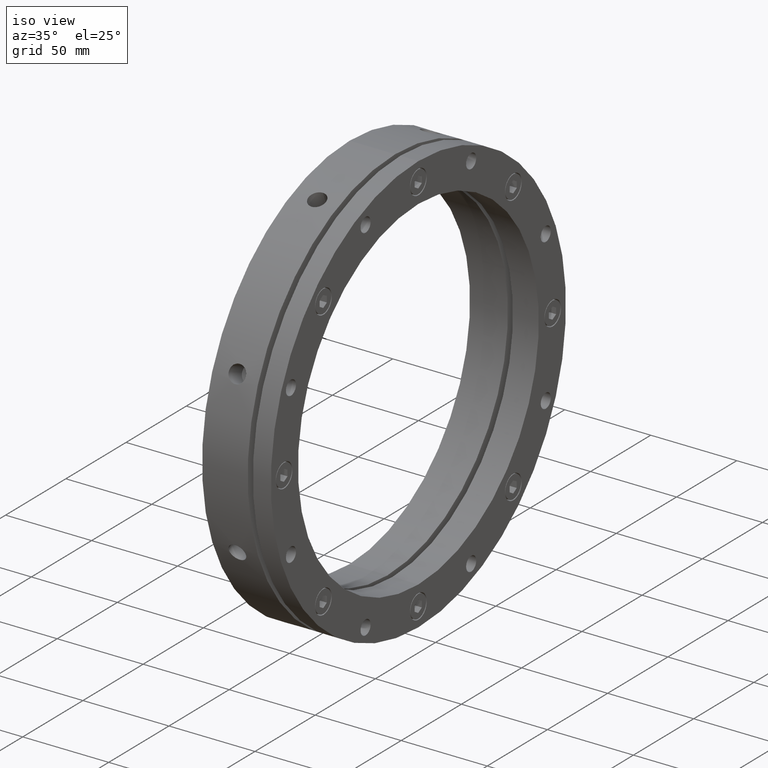
[diagram: clean part render]
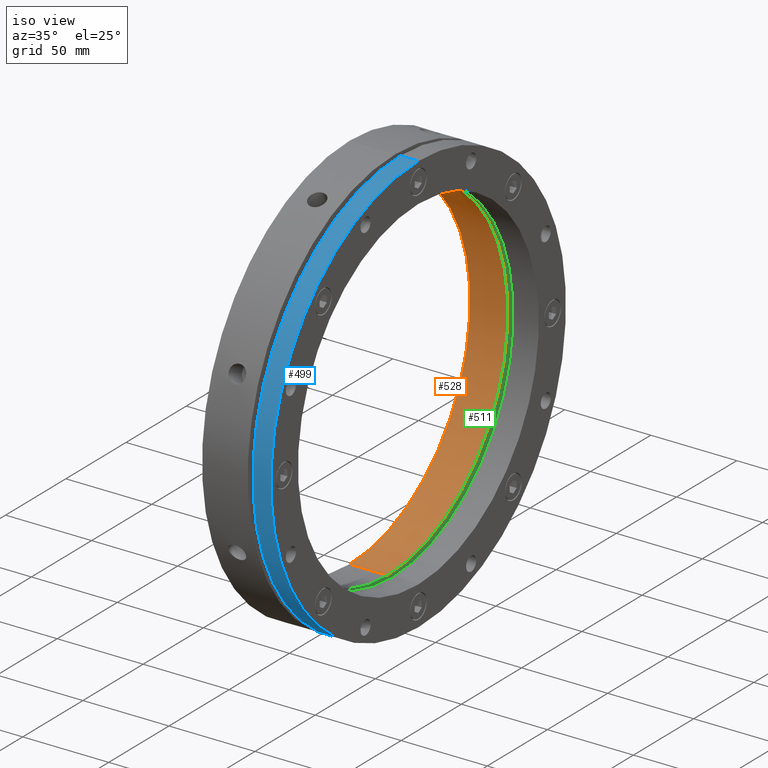
[diagram: same view with three faces highlighted in distinct colors, each labeled with its STEP entity id]
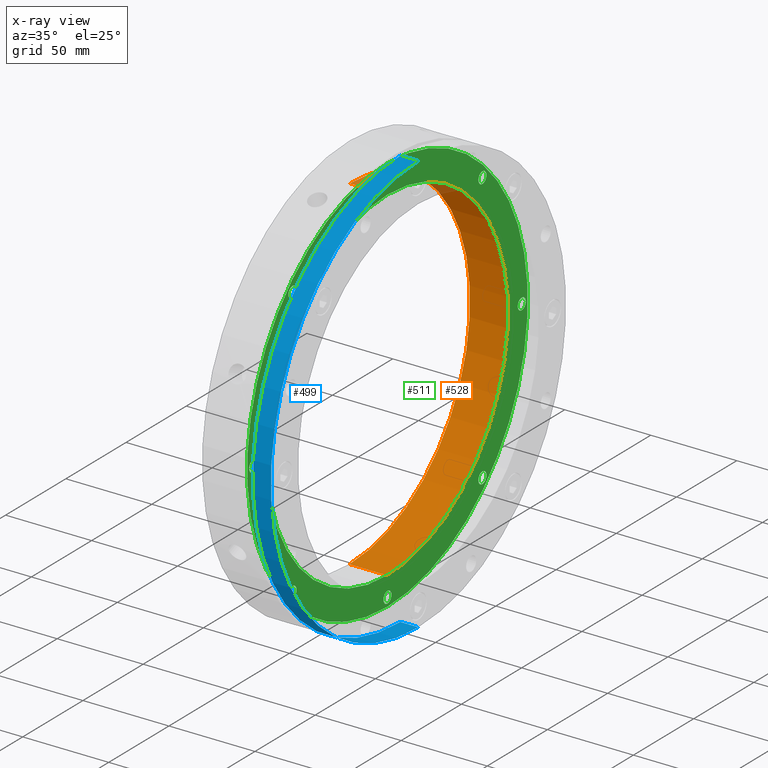
[diagram: x-ray of the same camera — body ghosted, the three highlighted faces saturated]
A machine part, iso view with three faces highlighted in distinct colors.
The next image is the same camera in x-ray (body ghosted, the three faces saturated) — at least one of them is partly hidden behind the body in this view.
Their STEP definitions:

[orange] entity #528 — the highlighted cylindrical surface (partial cylindrical patch) has radius 100 mm, axis along (1, 0, 0).
#193 = LINE ( 'NONE', #5312, #194 ) ;
#194 = VECTOR ( 'NONE', #5310, 1000.000000000000000 ) ;
#213 = LINE ( 'NONE', #5317, #222 ) ;
#222 = VECTOR ( 'NONE', #5313, 1000.000000000000000 ) ;
#415 = CIRCLE ( 'NONE', #4814, 100.0000000000000000 ) ;
#432 = CIRCLE ( 'NONE', #4827, 100.0000000000000000 ) ;
#528 = ADVANCED_FACE ( 'NONE', ( #4630 ), #4644, .F. ) ;
#680 = EDGE_CURVE ( 'NONE', #2823, #2867, #432, .T. ) ;
#703 = EDGE_CURVE ( 'NONE', #2841, #2928, #415, .T. ) ;
#1641 = ORIENTED_EDGE ( 'NONE', *, *, #680, .F. ) ;
#1645 = ORIENTED_EDGE ( 'NONE', *, *, #703, .F. ) ;
#1660 = ORIENTED_EDGE ( 'NONE', *, *, #3034, .F. ) ;
#1682 = ORIENTED_EDGE ( 'NONE', *, *, #3036, .T. ) ;
#2527 = DIRECTION ( 'NONE',  ( 0.0000000000000000000, 0.0000000000000000000, -1.000000000000000000 ) ) ;
#2529 = DIRECTION ( 'NONE',  ( 1.000000000000000000, 0.0000000000000000000, 0.0000000000000000000 ) ) ;
#2531 = CARTESIAN_POINT ( 'NONE',  ( 19.99999999999997200, 0.0000000000000000000, 0.0000000000000000000 ) ) ;
#2779 = EDGE_LOOP ( 'NONE', ( #1660, #1641, #1682, #1645 ) ) ;
#2823 = VERTEX_POINT ( 'NONE', #4227 ) ;
#2841 = VERTEX_POINT ( 'NONE', #4236 ) ;
#2867 = VERTEX_POINT ( 'NONE', #4260 ) ;
#2928 = VERTEX_POINT ( 'NONE', #4352 ) ;
#3034 = EDGE_CURVE ( 'NONE', #2867, #2841, #193, .T. ) ;
#3036 = EDGE_CURVE ( 'NONE', #2823, #2928, #213, .T. ) ;
#3471 = CARTESIAN_POINT ( 'NONE',  ( -3.122502256758252800E-014, 0.0000000000000000000, 0.0000000000000000000 ) ) ;
#3472 = DIRECTION ( 'NONE',  ( 1.000000000000000000, 0.0000000000000000000, 0.0000000000000000000 ) ) ;
#3473 = DIRECTION ( 'NONE',  ( 0.0000000000000000000, 0.0000000000000000000, -1.000000000000000000 ) ) ;
#3574 = CARTESIAN_POINT ( 'NONE',  ( 21.99999999999996400, 0.0000000000000000000, 0.0000000000000000000 ) ) ;
#3575 = DIRECTION ( 'NONE',  ( -1.000000000000000000, -0.0000000000000000000, -0.0000000000000000000 ) ) ;
#3576 = DIRECTION ( 'NONE',  ( 0.0000000000000000000, 0.0000000000000000000, -1.000000000000000000 ) ) ;
#4227 = CARTESIAN_POINT ( 'NONE',  ( -3.122502256758252800E-014, 0.0000000000000000000, -100.0000000000000000 ) ) ;
#4236 = CARTESIAN_POINT ( 'NONE',  ( 21.99999999999996400, 1.224646799147353200E-014, 100.0000000000000000 ) ) ;
#4260 = CARTESIAN_POINT ( 'NONE',  ( -3.122502256758252800E-014, 1.224646799147353200E-014, 100.0000000000000000 ) ) ;
#4352 = CARTESIAN_POINT ( 'NONE',  ( 21.99999999999996400, 0.0000000000000000000, -100.0000000000000000 ) ) ;
#4630 = FACE_OUTER_BOUND ( 'NONE', #2779, .T. ) ;
#4644 = CYLINDRICAL_SURFACE ( 'NONE', #5015, 100.0000000000000000 ) ;
#4814 = AXIS2_PLACEMENT_3D ( 'NONE', #3574, #3575, #3576 ) ;
#4827 = AXIS2_PLACEMENT_3D ( 'NONE', #3471, #3472, #3473 ) ;
#5015 = AXIS2_PLACEMENT_3D ( 'NONE', #2531, #2529, #2527 ) ;
#5310 = DIRECTION ( 'NONE',  ( 1.000000000000000000, 0.0000000000000000000, 0.0000000000000000000 ) ) ;
#5312 = CARTESIAN_POINT ( 'NONE',  ( 19.99999999999997200, 1.224646799147353200E-014, 100.0000000000000000 ) ) ;
#5313 = DIRECTION ( 'NONE',  ( 1.000000000000000000, 0.0000000000000000000, 0.0000000000000000000 ) ) ;
#5317 = CARTESIAN_POINT ( 'NONE',  ( 19.99999999999997200, 0.0000000000000000000, -100.0000000000000000 ) ) ;

[blue] entity #499 — the highlighted cylindrical surface (partial cylindrical patch) has radius 122.5 mm, axis along (1, 0, 0).
#202 = LINE ( 'NONE', #5357, #241 ) ;
#203 = VECTOR ( 'NONE', #5358, 1000.000000000000000 ) ;
#212 = LINE ( 'NONE', #5364, #203 ) ;
#236 = CIRCLE ( 'NONE', #4825, 122.5000000000000000 ) ;
#241 = VECTOR ( 'NONE', #5353, 1000.000000000000000 ) ;
#345 = CIRCLE ( 'NONE', #5996, 122.5000000000000000 ) ;
#499 = ADVANCED_FACE ( 'NONE', ( #828 ), #4549, .T. ) ;
#669 = EDGE_CURVE ( 'NONE', #2812, #2825, #236, .T. ) ;
#755 = EDGE_CURVE ( 'NONE', #2873, #2930, #345, .T. ) ;
#828 = FACE_OUTER_BOUND ( 'NONE', #1548, .T. ) ;
#1094 = AXIS2_PLACEMENT_3D ( 'NONE', #2441, #2439, #2433 ) ;
#1497 = ORIENTED_EDGE ( 'NONE', *, *, #669, .T. ) ;
#1502 = ORIENTED_EDGE ( 'NONE', *, *, #755, .T. ) ;
#1509 = ORIENTED_EDGE ( 'NONE', *, *, #3054, .F. ) ;
#1534 = ORIENTED_EDGE ( 'NONE', *, *, #3052, .T. ) ;
#1548 = EDGE_LOOP ( 'NONE', ( #1509, #1497, #1534, #1502 ) ) ;
#2433 = DIRECTION ( 'NONE',  ( 0.0000000000000000000, 0.0000000000000000000, -1.000000000000000000 ) ) ;
#2439 = DIRECTION ( 'NONE',  ( 1.000000000000000000, 0.0000000000000000000, 0.0000000000000000000 ) ) ;
#2441 = CARTESIAN_POINT ( 'NONE',  ( 19.99999999999996800, 0.0000000000000000000, 0.0000000000000000000 ) ) ;
#2812 = VERTEX_POINT ( 'NONE', #4219 ) ;
#2825 = VERTEX_POINT ( 'NONE', #4228 ) ;
#2873 = VERTEX_POINT ( 'NONE', #4266 ) ;
#2930 = VERTEX_POINT ( 'NONE', #4355 ) ;
#3052 = EDGE_CURVE ( 'NONE', #2825, #2873, #202, .T. ) ;
#3054 = EDGE_CURVE ( 'NONE', #2812, #2930, #212, .T. ) ;
#3368 = CARTESIAN_POINT ( 'NONE',  ( 29.49999999999997200, 0.0000000000000000000, 0.0000000000000000000 ) ) ;
#3369 = DIRECTION ( 'NONE',  ( 1.000000000000000000, 0.0000000000000000000, 0.0000000000000000000 ) ) ;
#3370 = DIRECTION ( 'NONE',  ( 0.0000000000000000000, 0.0000000000000000000, -1.000000000000000000 ) ) ;
#3761 = CARTESIAN_POINT ( 'NONE',  ( 39.99999999999997200, 0.0000000000000000000, 0.0000000000000000000 ) ) ;
#3762 = DIRECTION ( 'NONE',  ( -1.000000000000000000, -0.0000000000000000000, -0.0000000000000000000 ) ) ;
#3763 = DIRECTION ( 'NONE',  ( 0.0000000000000000000, 0.0000000000000000000, -1.000000000000000000 ) ) ;
#4219 = CARTESIAN_POINT ( 'NONE',  ( 29.49999999999997200, 1.500192328955507800E-014, 122.5000000000000000 ) ) ;
#4228 = CARTESIAN_POINT ( 'NONE',  ( 29.49999999999997200, 0.0000000000000000000, -122.5000000000000000 ) ) ;
#4266 = CARTESIAN_POINT ( 'NONE',  ( 39.99999999999997200, 0.0000000000000000000, -122.5000000000000000 ) ) ;
#4355 = CARTESIAN_POINT ( 'NONE',  ( 39.99999999999997200, 1.500192328955507800E-014, 122.5000000000000000 ) ) ;
#4549 = CYLINDRICAL_SURFACE ( 'NONE', #1094, 122.5000000000000000 ) ;
#4825 = AXIS2_PLACEMENT_3D ( 'NONE', #3368, #3369, #3370 ) ;
#5353 = DIRECTION ( 'NONE',  ( 1.000000000000000000, 0.0000000000000000000, 0.0000000000000000000 ) ) ;
#5357 = CARTESIAN_POINT ( 'NONE',  ( 19.99999999999996800, 0.0000000000000000000, -122.5000000000000000 ) ) ;
#5358 = DIRECTION ( 'NONE',  ( 1.000000000000000000, 0.0000000000000000000, 0.0000000000000000000 ) ) ;
#5364 = CARTESIAN_POINT ( 'NONE',  ( 19.99999999999996800, 1.500192328955507800E-014, 122.5000000000000000 ) ) ;
#5996 = AXIS2_PLACEMENT_3D ( 'NONE', #3761, #3762, #3763 ) ;

[green] entity #511 — the highlighted planar face has unit normal (-1, 0, 0).
#22 = CIRCLE ( 'NONE', #1589, 3.323499999999993000 ) ;
#40 = CIRCLE ( 'NONE', #1587, 3.323499999999993000 ) ;
#73 = CIRCLE ( 'NONE', #1593, 3.323500000000007200 ) ;
#108 = CIRCLE ( 'NONE', #1591, 3.323500000000000100 ) ;
#179 = CIRCLE ( 'NONE', #1618, 100.0000000000000000 ) ;
#226 = CIRCLE ( 'NONE', #1617, 3.323499999999993000 ) ;
#242 = CIRCLE ( 'NONE', #4824, 3.323500000000000100 ) ;
#263 = CIRCLE ( 'NONE', #4818, 3.323500000000000100 ) ;
#351 = CIRCLE ( 'NONE', #4839, 116.5000000000000000 ) ;
#415 = CIRCLE ( 'NONE', #4814, 100.0000000000000000 ) ;
#421 = CIRCLE ( 'NONE', #4841, 3.323499999999993000 ) ;
#428 = CIRCLE ( 'NONE', #4830, 3.323500000000007200 ) ;
#431 = CIRCLE ( 'NONE', #4823, 3.323499999999993000 ) ;
#433 = CIRCLE ( 'NONE', #4822, 3.323500000000007200 ) ;
#437 = CIRCLE ( 'NONE', #4826, 3.323500000000007200 ) ;
#438 = CIRCLE ( 'NONE', #4794, 3.323499999999993000 ) ;
#511 = ADVANCED_FACE ( 'NONE', ( #4733, #4569, #4595, #4562, #4558, #4565, #4570, #4608, #4574, #4571 ), #2478, .F. ) ;
#664 = EDGE_CURVE ( 'NONE', #2869, #2879, #263, .T. ) ;
#668 = EDGE_CURVE ( 'NONE', #2905, #2881, #242, .T. ) ;
#670 = EDGE_CURVE ( 'NONE', #2849, #2810, #437, .T. ) ;
#672 = EDGE_CURVE ( 'NONE', #2859, #2851, #438, .T. ) ;
#677 = EDGE_CURVE ( 'NONE', #2957, #2950, #433, .T. ) ;
#679 = EDGE_CURVE ( 'NONE', #2889, #2891, #431, .T. ) ;
#683 = EDGE_CURVE ( 'NONE', #2845, #2931, #428, .T. ) ;
#692 = EDGE_CURVE ( 'NONE', #2912, #2888, #351, .T. ) ;
#695 = EDGE_CURVE ( 'NONE', #2883, #2887, #421, .T. ) ;
#703 = EDGE_CURVE ( 'NONE', #2841, #2928, #415, .T. ) ;
#1209 = CIRCLE ( 'NONE', #4474, 3.323500000000007200 ) ;
#1280 = CIRCLE ( 'NONE', #4465, 3.323500000000000100 ) ;
#1296 = CIRCLE ( 'NONE', #4464, 3.323500000000007200 ) ;
#1299 = CIRCLE ( 'NONE', #4477, 116.5000000000000000 ) ;
#1587 = AXIS2_PLACEMENT_3D ( 'NONE', #5474, #5475, #5476 ) ;
#1589 = AXIS2_PLACEMENT_3D ( 'NONE', #5464, #5465, #5466 ) ;
#1591 = AXIS2_PLACEMENT_3D ( 'NONE', #5454, #5455, #5456 ) ;
#1593 = AXIS2_PLACEMENT_3D ( 'NONE', #5444, #5445, #5446 ) ;
#1617 = AXIS2_PLACEMENT_3D ( 'NONE', #5324, #5325, #5326 ) ;
#1618 = AXIS2_PLACEMENT_3D ( 'NONE', #5319, #5320, #5321 ) ;
#1699 = ORIENTED_EDGE ( 'NONE', *, *, #3035, .T. ) ;
#1703 = ORIENTED_EDGE ( 'NONE', *, *, #672, .T. ) ;
#1707 = ORIENTED_EDGE ( 'NONE', *, *, #670, .T. ) ;
#1712 = ORIENTED_EDGE ( 'NONE', *, *, #695, .T. ) ;
#1714 = ORIENTED_EDGE ( 'NONE', *, *, #3097, .T. ) ;
#1716 = ORIENTED_EDGE ( 'NONE', *, *, #679, .T. ) ;
#1717 = EDGE_LOOP ( 'NONE', ( #1796, #1800 ) ) ;
#1720 = ORIENTED_EDGE ( 'NONE', *, *, #683, .T. ) ;
#1721 = ORIENTED_EDGE ( 'NONE', *, *, #3089, .T. ) ;
#1722 = ORIENTED_EDGE ( 'NONE', *, *, #3037, .T. ) ;
#1754 = ORIENTED_EDGE ( 'NONE', *, *, #703, .T. ) ;
#1757 = EDGE_LOOP ( 'NONE', ( #1712, #1792 ) ) ;
#1772 = ORIENTED_EDGE ( 'NONE', *, *, #3085, .T. ) ;
#1789 = EDGE_LOOP ( 'NONE', ( #1699, #1754 ) ) ;
#1792 = ORIENTED_EDGE ( 'NONE', *, *, #3093, .T. ) ;
#1796 = ORIENTED_EDGE ( 'NONE', *, *, #668, .T. ) ;
#1797 = ORIENTED_EDGE ( 'NONE', *, *, #677, .T. ) ;
#1800 = ORIENTED_EDGE ( 'NONE', *, *, #3223, .T. ) ;
#1801 = ORIENTED_EDGE ( 'NONE', *, *, #692, .F. ) ;
#1823 = ORIENTED_EDGE ( 'NONE', *, *, #3225, .T. ) ;
#1839 = ORIENTED_EDGE ( 'NONE', *, *, #664, .T. ) ;
#1844 = ORIENTED_EDGE ( 'NONE', *, *, #3192, .F. ) ;
#1858 = EDGE_LOOP ( 'NONE', ( #1801, #1844 ) ) ;
#1860 = EDGE_LOOP ( 'NONE', ( #1797, #1823 ) ) ;
#1872 = ORIENTED_EDGE ( 'NONE', *, *, #3201, .T. ) ;
#1897 = EDGE_LOOP ( 'NONE', ( #1716, #1714 ) ) ;
#1908 = EDGE_LOOP ( 'NONE', ( #1839, #1721 ) ) ;
#1909 = EDGE_LOOP ( 'NONE', ( #1703, #1722 ) ) ;
#1912 = EDGE_LOOP ( 'NONE', ( #1720, #1872 ) ) ;
#1915 = EDGE_LOOP ( 'NONE', ( #1707, #1772 ) ) ;
#2475 = DIRECTION ( 'NONE',  ( -1.000000000000000000, 0.0000000000000000000, 0.0000000000000000000 ) ) ;
#2476 = CARTESIAN_POINT ( 'NONE',  ( 21.99999999999996400, 58.25000000000000000, 0.0000000000000000000 ) ) ;
#2478 = PLANE ( 'NONE',  #5032 ) ;
#2481 = DIRECTION ( 'NONE',  ( 0.0000000000000000000, 0.0000000000000000000, 1.000000000000000000 ) ) ;
#2810 = VERTEX_POINT ( 'NONE', #4217 ) ;
#2841 = VERTEX_POINT ( 'NONE', #4236 ) ;
#2845 = VERTEX_POINT ( 'NONE', #4239 ) ;
#2849 = VERTEX_POINT ( 'NONE', #4242 ) ;
#2851 = VERTEX_POINT ( 'NONE', #4244 ) ;
#2859 = VERTEX_POINT ( 'NONE', #4252 ) ;
#2869 = VERTEX_POINT ( 'NONE', #4262 ) ;
#2879 = VERTEX_POINT ( 'NONE', #4272 ) ;
#2881 = VERTEX_POINT ( 'NONE', #4274 ) ;
#2883 = VERTEX_POINT ( 'NONE', #4276 ) ;
#2887 = VERTEX_POINT ( 'NONE', #4282 ) ;
#2888 = VERTEX_POINT ( 'NONE', #4284 ) ;
#2889 = VERTEX_POINT ( 'NONE', #4285 ) ;
#2891 = VERTEX_POINT ( 'NONE', #4289 ) ;
#2905 = VERTEX_POINT ( 'NONE', #4311 ) ;
#2912 = VERTEX_POINT ( 'NONE', #4324 ) ;
#2928 = VERTEX_POINT ( 'NONE', #4352 ) ;
#2931 = VERTEX_POINT ( 'NONE', #4357 ) ;
#2950 = VERTEX_POINT ( 'NONE', #5050 ) ;
#2957 = VERTEX_POINT ( 'NONE', #5057 ) ;
#3035 = EDGE_CURVE ( 'NONE', #2928, #2841, #179, .T. ) ;
#3037 = EDGE_CURVE ( 'NONE', #2851, #2859, #226, .T. ) ;
#3085 = EDGE_CURVE ( 'NONE', #2810, #2849, #73, .T. ) ;
#3089 = EDGE_CURVE ( 'NONE', #2879, #2869, #108, .T. ) ;
#3093 = EDGE_CURVE ( 'NONE', #2887, #2883, #22, .T. ) ;
#3097 = EDGE_CURVE ( 'NONE', #2891, #2889, #40, .T. ) ;
#3192 = EDGE_CURVE ( 'NONE', #2888, #2912, #1299, .T. ) ;
#3201 = EDGE_CURVE ( 'NONE', #2931, #2845, #1209, .T. ) ;
#3223 = EDGE_CURVE ( 'NONE', #2881, #2905, #1280, .T. ) ;
#3225 = EDGE_CURVE ( 'NONE', #2950, #2957, #1296, .T. ) ;
#3355 = CARTESIAN_POINT ( 'NONE',  ( 21.99999999999996400, -111.5000000000000000, 0.0000000000000000000 ) ) ;
#3356 = DIRECTION ( 'NONE',  ( -1.000000000000000000, 0.0000000000000000000, 0.0000000000000000000 ) ) ;
#3357 = DIRECTION ( 'NONE',  ( 0.0000000000000000000, 0.0000000000000000000, 1.000000000000000000 ) ) ;
#3365 = CARTESIAN_POINT ( 'NONE',  ( 21.99999999999996400, 111.5000000000000000, -1.776356999999999900E-014 ) ) ;
#3366 = DIRECTION ( 'NONE',  ( -1.000000000000000000, 0.0000000000000000000, 0.0000000000000000000 ) ) ;
#3367 = DIRECTION ( 'NONE',  ( 0.0000000000000000000, 0.0000000000000000000, 1.000000000000000000 ) ) ;
#3372 = CARTESIAN_POINT ( 'NONE',  ( 21.99999999999996400, -78.84240610230004600, 78.84240610230006000 ) ) ;
#3373 = DIRECTION ( 'NONE',  ( -1.000000000000000000, 0.0000000000000000000, 0.0000000000000000000 ) ) ;
#3374 = DIRECTION ( 'NONE',  ( 0.0000000000000000000, 0.0000000000000000000, 1.000000000000000000 ) ) ;
#3412 = CARTESIAN_POINT ( 'NONE',  ( 21.99999999999996400, 0.0000000000000000000, 111.5000000000000000 ) ) ;
#3413 = DIRECTION ( 'NONE',  ( -1.000000000000000000, 0.0000000000000000000, 0.0000000000000000000 ) ) ;
#3414 = DIRECTION ( 'NONE',  ( 0.0000000000000000000, 0.0000000000000000000, 1.000000000000000000 ) ) ;
#3428 = CARTESIAN_POINT ( 'NONE',  ( 21.99999999999996400, 78.84240610230007500, 78.84240610230003200 ) ) ;
#3429 = DIRECTION ( 'NONE',  ( -1.000000000000000000, 0.0000000000000000000, 0.0000000000000000000 ) ) ;
#3430 = DIRECTION ( 'NONE',  ( 0.0000000000000000000, 0.0000000000000000000, 1.000000000000000000 ) ) ;
#3468 = CARTESIAN_POINT ( 'NONE',  ( 21.99999999999996400, -1.776356999999999900E-014, -111.5000000000000000 ) ) ;
#3469 = DIRECTION ( 'NONE',  ( -1.000000000000000000, 0.0000000000000000000, 0.0000000000000000000 ) ) ;
#3470 = DIRECTION ( 'NONE',  ( 0.0000000000000000000, 0.0000000000000000000, 1.000000000000000000 ) ) ;
#3480 = CARTESIAN_POINT ( 'NONE',  ( 21.99999999999996400, 78.84240610230003200, -78.84240610230006000 ) ) ;
#3481 = DIRECTION ( 'NONE',  ( -1.000000000000000000, 0.0000000000000000000, 0.0000000000000000000 ) ) ;
#3482 = DIRECTION ( 'NONE',  ( 0.0000000000000000000, 0.0000000000000000000, 1.000000000000000000 ) ) ;
#3507 = CARTESIAN_POINT ( 'NONE',  ( 21.99999999999995000, 0.0000000000000000000, 0.0000000000000000000 ) ) ;
#3508 = DIRECTION ( 'NONE',  ( -1.000000000000000000, 0.0000000000000000000, 0.0000000000000000000 ) ) ;
#3509 = DIRECTION ( 'NONE',  ( 0.0000000000000000000, 0.0000000000000000000, 1.000000000000000000 ) ) ;
#3549 = CARTESIAN_POINT ( 'NONE',  ( 21.99999999999996400, -78.84240610230006000, -78.84240610230004600 ) ) ;
#3550 = DIRECTION ( 'NONE',  ( -1.000000000000000000, 0.0000000000000000000, 0.0000000000000000000 ) ) ;
#3551 = DIRECTION ( 'NONE',  ( 0.0000000000000000000, 0.0000000000000000000, 1.000000000000000000 ) ) ;
#3574 = CARTESIAN_POINT ( 'NONE',  ( 21.99999999999996400, 0.0000000000000000000, 0.0000000000000000000 ) ) ;
#3575 = DIRECTION ( 'NONE',  ( -1.000000000000000000, -0.0000000000000000000, -0.0000000000000000000 ) ) ;
#3576 = DIRECTION ( 'NONE',  ( 0.0000000000000000000, 0.0000000000000000000, -1.000000000000000000 ) ) ;
#4217 = CARTESIAN_POINT ( 'NONE',  ( 21.99999999999996400, -78.84240610230004600, 75.51890610230005100 ) ) ;
#4236 = CARTESIAN_POINT ( 'NONE',  ( 21.99999999999996400, 1.224646799147353200E-014, 100.0000000000000000 ) ) ;
#4239 = CARTESIAN_POINT ( 'NONE',  ( 21.99999999999996400, 78.84240610230003200, -75.51890610230005100 ) ) ;
#4242 = CARTESIAN_POINT ( 'NONE',  ( 21.99999999999996400, -78.84240610230004600, 82.16590610230007000 ) ) ;
#4244 = CARTESIAN_POINT ( 'NONE',  ( 21.99999999999996400, 4.070113636966236800E-016, 108.1765000000000000 ) ) ;
#4252 = CARTESIAN_POINT ( 'NONE',  ( 21.99999999999996400, 0.0000000000000000000, 114.8235000000000000 ) ) ;
#4262 = CARTESIAN_POINT ( 'NONE',  ( 21.99999999999996400, -111.5000000000000000, 3.323500000000000100 ) ) ;
#4272 = CARTESIAN_POINT ( 'NONE',  ( 21.99999999999996400, -111.5000000000000000, -3.323500000000000100 ) ) ;
#4274 = CARTESIAN_POINT ( 'NONE',  ( 21.99999999999996400, 111.5000000000000000, -3.323500000000017900 ) ) ;
#4276 = CARTESIAN_POINT ( 'NONE',  ( 21.99999999999996400, -78.84240610230006000, -75.51890610230005100 ) ) ;
#4282 = CARTESIAN_POINT ( 'NONE',  ( 21.99999999999996400, -78.84240610230006000, -82.16590610230004200 ) ) ;
#4284 = CARTESIAN_POINT ( 'NONE',  ( 21.99999999999995000, 1.426713521006666700E-014, -116.5000000000000000 ) ) ;
#4285 = CARTESIAN_POINT ( 'NONE',  ( 21.99999999999996400, -1.776356999999999900E-014, -108.1765000000000000 ) ) ;
#4289 = CARTESIAN_POINT ( 'NONE',  ( 21.99999999999996400, -1.735655863630337500E-014, -114.8235000000000000 ) ) ;
#4311 = CARTESIAN_POINT ( 'NONE',  ( 21.99999999999996400, 111.5000000000000000, 3.323499999999982400 ) ) ;
#4324 = CARTESIAN_POINT ( 'NONE',  ( 21.99999999999995000, 0.0000000000000000000, 116.5000000000000000 ) ) ;
#4352 = CARTESIAN_POINT ( 'NONE',  ( 21.99999999999996400, 0.0000000000000000000, -100.0000000000000000 ) ) ;
#4357 = CARTESIAN_POINT ( 'NONE',  ( 21.99999999999996400, 78.84240610230003200, -82.16590610230007000 ) ) ;
#4464 = AXIS2_PLACEMENT_3D ( 'NONE', #5793, #5794, #5795 ) ;
#4465 = AXIS2_PLACEMENT_3D ( 'NONE', #5787, #5788, #5789 ) ;
#4474 = AXIS2_PLACEMENT_3D ( 'NONE', #5733, #5734, #5735 ) ;
#4477 = AXIS2_PLACEMENT_3D ( 'NONE', #5712, #5713, #5714 ) ;
#4558 = FACE_BOUND ( 'NONE', #1757, .T. ) ;
#4562 = FACE_BOUND ( 'NONE', #1908, .T. ) ;
#4565 = FACE_BOUND ( 'NONE', #1897, .T. ) ;
#4569 = FACE_BOUND ( 'NONE', #1909, .T. ) ;
#4570 = FACE_BOUND ( 'NONE', #1912, .T. ) ;
#4571 = FACE_OUTER_BOUND ( 'NONE', #1858, .T. ) ;
#4574 = FACE_BOUND ( 'NONE', #1860, .T. ) ;
#4595 = FACE_BOUND ( 'NONE', #1915, .T. ) ;
#4608 = FACE_BOUND ( 'NONE', #1717, .T. ) ;
#4733 = FACE_BOUND ( 'NONE', #1789, .T. ) ;
#4794 = AXIS2_PLACEMENT_3D ( 'NONE', #3412, #3413, #3414 ) ;
#4814 = AXIS2_PLACEMENT_3D ( 'NONE', #3574, #3575, #3576 ) ;
#4818 = AXIS2_PLACEMENT_3D ( 'NONE', #3355, #3356, #3357 ) ;
#4822 = AXIS2_PLACEMENT_3D ( 'NONE', #3428, #3429, #3430 ) ;
#4823 = AXIS2_PLACEMENT_3D ( 'NONE', #3468, #3469, #3470 ) ;
#4824 = AXIS2_PLACEMENT_3D ( 'NONE', #3365, #3366, #3367 ) ;
#4826 = AXIS2_PLACEMENT_3D ( 'NONE', #3372, #3373, #3374 ) ;
#4830 = AXIS2_PLACEMENT_3D ( 'NONE', #3480, #3481, #3482 ) ;
#4839 = AXIS2_PLACEMENT_3D ( 'NONE', #3507, #3508, #3509 ) ;
#4841 = AXIS2_PLACEMENT_3D ( 'NONE', #3549, #3550, #3551 ) ;
#5032 = AXIS2_PLACEMENT_3D ( 'NONE', #2476, #2475, #2481 ) ;
#5050 = CARTESIAN_POINT ( 'NONE',  ( 21.99999999999996400, 78.84240610230007500, 75.51890610230002200 ) ) ;
#5057 = CARTESIAN_POINT ( 'NONE',  ( 21.99999999999996400, 78.84240610230007500, 82.16590610230004200 ) ) ;
#5319 = CARTESIAN_POINT ( 'NONE',  ( 21.99999999999996400, 0.0000000000000000000, 0.0000000000000000000 ) ) ;
#5320 = DIRECTION ( 'NONE',  ( -1.000000000000000000, -0.0000000000000000000, -0.0000000000000000000 ) ) ;
#5321 = DIRECTION ( 'NONE',  ( 0.0000000000000000000, 0.0000000000000000000, -1.000000000000000000 ) ) ;
#5324 = CARTESIAN_POINT ( 'NONE',  ( 21.99999999999996400, 0.0000000000000000000, 111.5000000000000000 ) ) ;
#5325 = DIRECTION ( 'NONE',  ( -1.000000000000000000, 0.0000000000000000000, 0.0000000000000000000 ) ) ;
#5326 = DIRECTION ( 'NONE',  ( 0.0000000000000000000, 0.0000000000000000000, 1.000000000000000000 ) ) ;
#5444 = CARTESIAN_POINT ( 'NONE',  ( 21.99999999999996400, -78.84240610230004600, 78.84240610230006000 ) ) ;
#5445 = DIRECTION ( 'NONE',  ( -1.000000000000000000, 0.0000000000000000000, 0.0000000000000000000 ) ) ;
#5446 = DIRECTION ( 'NONE',  ( 0.0000000000000000000, 0.0000000000000000000, 1.000000000000000000 ) ) ;
#5454 = CARTESIAN_POINT ( 'NONE',  ( 21.99999999999996400, -111.5000000000000000, 0.0000000000000000000 ) ) ;
#5455 = DIRECTION ( 'NONE',  ( -1.000000000000000000, 0.0000000000000000000, 0.0000000000000000000 ) ) ;
#5456 = DIRECTION ( 'NONE',  ( 0.0000000000000000000, 0.0000000000000000000, 1.000000000000000000 ) ) ;
#5464 = CARTESIAN_POINT ( 'NONE',  ( 21.99999999999996400, -78.84240610230006000, -78.84240610230004600 ) ) ;
#5465 = DIRECTION ( 'NONE',  ( -1.000000000000000000, 0.0000000000000000000, 0.0000000000000000000 ) ) ;
#5466 = DIRECTION ( 'NONE',  ( 0.0000000000000000000, 0.0000000000000000000, 1.000000000000000000 ) ) ;
#5474 = CARTESIAN_POINT ( 'NONE',  ( 21.99999999999996400, -1.776356999999999900E-014, -111.5000000000000000 ) ) ;
#5475 = DIRECTION ( 'NONE',  ( -1.000000000000000000, 0.0000000000000000000, 0.0000000000000000000 ) ) ;
#5476 = DIRECTION ( 'NONE',  ( 0.0000000000000000000, 0.0000000000000000000, 1.000000000000000000 ) ) ;
#5712 = CARTESIAN_POINT ( 'NONE',  ( 21.99999999999995000, 0.0000000000000000000, 0.0000000000000000000 ) ) ;
#5713 = DIRECTION ( 'NONE',  ( -1.000000000000000000, 0.0000000000000000000, 0.0000000000000000000 ) ) ;
#5714 = DIRECTION ( 'NONE',  ( 0.0000000000000000000, 0.0000000000000000000, 1.000000000000000000 ) ) ;
#5733 = CARTESIAN_POINT ( 'NONE',  ( 21.99999999999996400, 78.84240610230003200, -78.84240610230006000 ) ) ;
#5734 = DIRECTION ( 'NONE',  ( -1.000000000000000000, 0.0000000000000000000, 0.0000000000000000000 ) ) ;
#5735 = DIRECTION ( 'NONE',  ( 0.0000000000000000000, 0.0000000000000000000, 1.000000000000000000 ) ) ;
#5787 = CARTESIAN_POINT ( 'NONE',  ( 21.99999999999996400, 111.5000000000000000, -1.776356999999999900E-014 ) ) ;
#5788 = DIRECTION ( 'NONE',  ( -1.000000000000000000, 0.0000000000000000000, 0.0000000000000000000 ) ) ;
#5789 = DIRECTION ( 'NONE',  ( 0.0000000000000000000, 0.0000000000000000000, 1.000000000000000000 ) ) ;
#5793 = CARTESIAN_POINT ( 'NONE',  ( 21.99999999999996400, 78.84240610230007500, 78.84240610230003200 ) ) ;
#5794 = DIRECTION ( 'NONE',  ( -1.000000000000000000, 0.0000000000000000000, 0.0000000000000000000 ) ) ;
#5795 = DIRECTION ( 'NONE',  ( 0.0000000000000000000, 0.0000000000000000000, 1.000000000000000000 ) ) ;